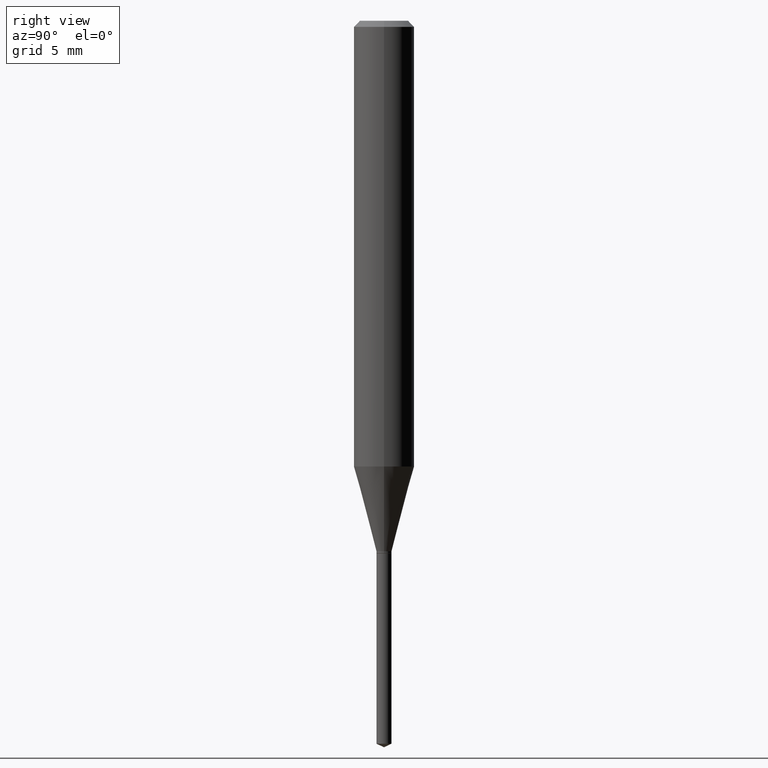
[diagram: clean part render]
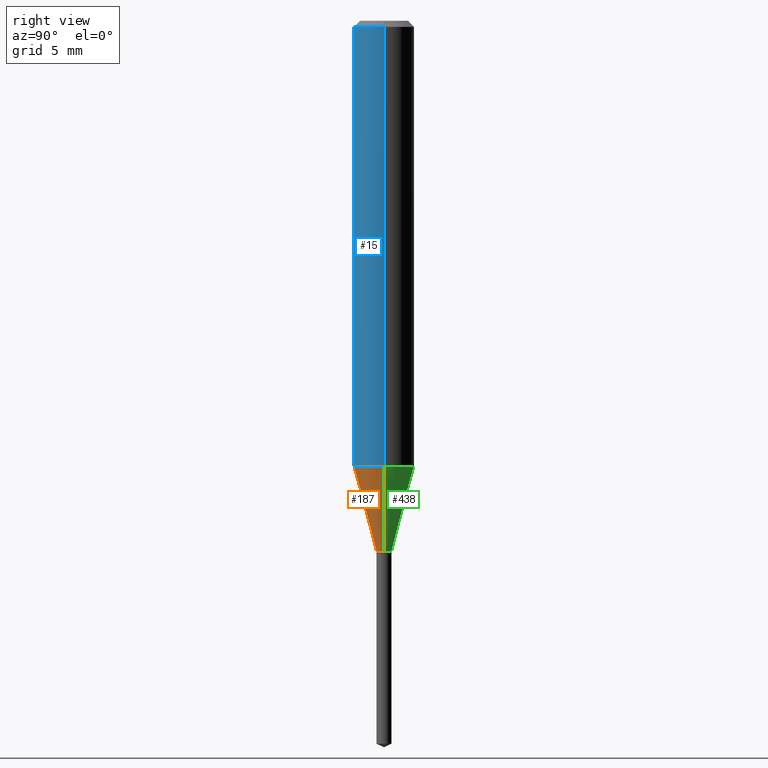
[diagram: same view with three faces highlighted in distinct colors, each labeled with its STEP entity id]
A machine part, right view with three faces highlighted in distinct colors.
Their STEP definitions:

[orange] entity #187 — the highlighted conical surface has half-angle 15 deg.
#43 = FACE_OUTER_BOUND ( 'NONE', #242, .T. ) ;
#47 = CARTESIAN_POINT ( 'NONE',  ( 0.01559999999999999928, -3.933153728206803735E-15, -1.095300000000000162 ) ) ;
#54 = VERTEX_POINT ( 'NONE', #108 ) ;
#61 = EDGE_CURVE ( 'NONE', #106, #54, #131, .T. ) ;
#72 = EDGE_CURVE ( 'NONE', #444, #106, #449, .T. ) ;
#79 = DIRECTION ( 'NONE',  ( 1.000000000000000000, -6.982962677686264344E-15, 0.000000000000000000 ) ) ;
#106 = VERTEX_POINT ( 'NONE', #274 ) ;
#108 = CARTESIAN_POINT ( 'NONE',  ( 0.06250000000000011102, -3.649529586103976953E-15, -0.9202668171250198981 ) ) ;
#112 = CARTESIAN_POINT ( 'NONE',  ( -0.01559999999999999928, -3.713374843656321925E-15, -1.095300000000000162 ) ) ;
#119 = DIRECTION ( 'NONE',  ( -2.445468806185136597E-29, 3.491481338843145583E-15, 1.000000000000000000 ) ) ;
#131 = CIRCLE ( 'NONE', #406, 0.06250000000000012490 ) ;
#140 = VERTEX_POINT ( 'NONE', #47 ) ;
#144 = ORIENTED_EDGE ( 'NONE', *, *, #190, .T. ) ;
#147 = ORIENTED_EDGE ( 'NONE', *, *, #72, .F. ) ;
#162 = DIRECTION ( 'NONE',  ( 0.2588190451025213501, 1.565188264969621968E-15, 0.9659258262890682012 ) ) ;
#169 = AXIS2_PLACEMENT_3D ( 'NONE', #214, #474, #184 ) ;
#183 = VECTOR ( 'NONE', #162, 39.37007874015747433 ) ;
#184 = DIRECTION ( 'NONE',  ( 1.000000000000000000, -6.982962677686252511E-15, 0.000000000000000000 ) ) ;
#187 = ADVANCED_FACE ( 'NONE', ( #43 ), #333, .T. ) ;
#190 = EDGE_CURVE ( 'NONE', #140, #54, #237, .T. ) ;
#198 = CARTESIAN_POINT ( 'NONE',  ( 0.01559999999999999928, -3.933153728206803735E-15, -1.095300000000000162 ) ) ;
#214 = CARTESIAN_POINT ( 'NONE',  ( 2.678521983414580949E-29, -3.824219510434897968E-15, -1.095300000000000162 ) ) ;
#233 = DIRECTION ( 'NONE',  ( 1.000000000000000000, -6.982962677686252511E-15, 0.000000000000000000 ) ) ;
#237 = LINE ( 'NONE', #198, #183 ) ;
#242 = EDGE_LOOP ( 'NONE', ( #147, #457, #144, #470 ) ) ;
#255 = AXIS2_PLACEMENT_3D ( 'NONE', #348, #119, #233 ) ;
#265 = DIRECTION ( 'NONE',  ( -2.445468806185136597E-29, 3.491481338843145583E-15, 1.000000000000000000 ) ) ;
#270 = VECTOR ( 'NONE', #419, 39.37007874015747433 ) ;
#274 = CARTESIAN_POINT ( 'NONE',  ( -0.06250000000000011102, -2.769005208898521090E-15, -0.9202668171250198981 ) ) ;
#317 = CIRCLE ( 'NONE', #169, 0.01559999999999999928 ) ;
#333 = CONICAL_SURFACE ( 'NONE', #255, 0.01559999999999999928, 0.2617993877991500740 ) ;
#348 = CARTESIAN_POINT ( 'NONE',  ( 2.678521983414580949E-29, -3.824219510434897968E-15, -1.095300000000000162 ) ) ;
#406 = AXIS2_PLACEMENT_3D ( 'NONE', #454, #265, #79 ) ;
#419 = DIRECTION ( 'NONE',  ( -0.2588190451025213501, 5.211531920934551042E-15, 0.9659258262890682012 ) ) ;
#431 = EDGE_CURVE ( 'NONE', #444, #140, #317, .T. ) ;
#439 = CARTESIAN_POINT ( 'NONE',  ( -0.01559999999999999928, -3.720706954467892240E-15, -1.095300000000000162 ) ) ;
#444 = VERTEX_POINT ( 'NONE', #439 ) ;
#449 = LINE ( 'NONE', #112, #270 ) ;
#454 = CARTESIAN_POINT ( 'NONE',  ( 2.250483794646517689E-29, -3.213094418748584889E-15, -0.9202668171250198981 ) ) ;
#457 = ORIENTED_EDGE ( 'NONE', *, *, #431, .T. ) ;
#470 = ORIENTED_EDGE ( 'NONE', *, *, #61, .F. ) ;
#474 = DIRECTION ( 'NONE',  ( -2.445468806185136597E-29, 3.491481338843145583E-15, 1.000000000000000000 ) ) ;

[blue] entity #15 — the highlighted cylindrical surface (edge-blend (fillet) strip) has radius 1.5875 mm, axis along (-0, 0, 1).
#1 = CYLINDRICAL_SURFACE ( 'NONE', #293, 0.06250000000000005551 ) ;
#13 = DIRECTION ( 'NONE',  ( -2.445468806185136877E-29, 3.491481338843145188E-15, 1.000000000000000000 ) ) ;
#15 = ADVANCED_FACE ( 'NONE', ( #154 ), #1, .T. ) ;
#23 = CARTESIAN_POINT ( 'NONE',  ( -0.06250000000000000000, -1.184279757891998426E-15, -0.01250000000000008223 ) ) ;
#54 = VERTEX_POINT ( 'NONE', #108 ) ;
#55 = EDGE_CURVE ( 'NONE', #54, #437, #489, .T. ) ;
#60 = ORIENTED_EDGE ( 'NONE', *, *, #61, .T. ) ;
#61 = EDGE_CURVE ( 'NONE', #106, #54, #131, .T. ) ;
#73 = DIRECTION ( 'NONE',  ( -2.445468806185136877E-29, 3.491481338843145188E-15, 1.000000000000000000 ) ) ;
#79 = DIRECTION ( 'NONE',  ( 1.000000000000000000, -6.982962677686264344E-15, 0.000000000000000000 ) ) ;
#106 = VERTEX_POINT ( 'NONE', #274 ) ;
#108 = CARTESIAN_POINT ( 'NONE',  ( 0.06250000000000011102, -3.649529586103976953E-15, -0.9202668171250198981 ) ) ;
#113 = EDGE_CURVE ( 'NONE', #106, #322, #238, .T. ) ;
#123 = VECTOR ( 'NONE', #73, 39.37007874015748143 ) ;
#131 = CIRCLE ( 'NONE', #406, 0.06250000000000012490 ) ;
#134 = EDGE_LOOP ( 'NONE', ( #215, #60, #193, #220 ) ) ;
#154 = FACE_OUTER_BOUND ( 'NONE', #134, .T. ) ;
#156 = CARTESIAN_POINT ( 'NONE',  ( 0.000000000000000000, 0.000000000000000000, 0.000000000000000000 ) ) ;
#193 = ORIENTED_EDGE ( 'NONE', *, *, #55, .T. ) ;
#215 = ORIENTED_EDGE ( 'NONE', *, *, #113, .F. ) ;
#218 = DIRECTION ( 'NONE',  ( -2.445468806185136597E-29, 3.491481338843145583E-15, 1.000000000000000000 ) ) ;
#220 = ORIENTED_EDGE ( 'NONE', *, *, #394, .F. ) ;
#229 = CARTESIAN_POINT ( 'NONE',  ( 0.06250000000000005551, -4.364351673553921131E-16, 3.047610484872463023E-30 ) ) ;
#238 = LINE ( 'NONE', #349, #421 ) ;
#265 = DIRECTION ( 'NONE',  ( -2.445468806185136597E-29, 3.491481338843145583E-15, 1.000000000000000000 ) ) ;
#274 = CARTESIAN_POINT ( 'NONE',  ( -0.06250000000000011102, -2.769005208898521090E-15, -0.9202668171250198981 ) ) ;
#282 = CARTESIAN_POINT ( 'NONE',  ( 0.06250000000000000000, -4.800786840909312308E-16, -0.01250000000000008223 ) ) ;
#293 = AXIS2_PLACEMENT_3D ( 'NONE', #156, #376, #451 ) ;
#322 = VERTEX_POINT ( 'NONE', #23 ) ;
#334 = CIRCLE ( 'NONE', #345, 0.06250000000000000000 ) ;
#345 = AXIS2_PLACEMENT_3D ( 'NONE', #468, #218, #397 ) ;
#349 = CARTESIAN_POINT ( 'NONE',  ( -0.06250000000000005551, 4.440892098500630106E-16, -3.074334431409318916E-30 ) ) ;
#376 = DIRECTION ( 'NONE',  ( -2.445468806185136597E-29, 3.491481338843145583E-15, 1.000000000000000000 ) ) ;
#394 = EDGE_CURVE ( 'NONE', #322, #437, #334, .T. ) ;
#397 = DIRECTION ( 'NONE',  ( 1.000000000000000000, -6.982962677686266711E-15, 0.000000000000000000 ) ) ;
#406 = AXIS2_PLACEMENT_3D ( 'NONE', #454, #265, #79 ) ;
#421 = VECTOR ( 'NONE', #13, 39.37007874015748143 ) ;
#437 = VERTEX_POINT ( 'NONE', #282 ) ;
#451 = DIRECTION ( 'NONE',  ( 1.000000000000000000, -6.982962677686267499E-15, 4.876176775795936353E-29 ) ) ;
#454 = CARTESIAN_POINT ( 'NONE',  ( 2.250483794646517689E-29, -3.213094418748584889E-15, -0.9202668171250198981 ) ) ;
#468 = CARTESIAN_POINT ( 'NONE',  ( 3.056836007731440977E-31, -4.364351673553961068E-17, -0.01250000000000008223 ) ) ;
#489 = LINE ( 'NONE', #229, #123 ) ;

[green] entity #438 — the highlighted conical surface has half-angle 15 deg.
#6 = DIRECTION ( 'NONE',  ( 1.000000000000000000, -6.982962677686252511E-15, 0.000000000000000000 ) ) ;
#45 = DIRECTION ( 'NONE',  ( -2.445468806185136597E-29, 3.491481338843145583E-15, 1.000000000000000000 ) ) ;
#47 = CARTESIAN_POINT ( 'NONE',  ( 0.01559999999999999928, -3.933153728206803735E-15, -1.095300000000000162 ) ) ;
#54 = VERTEX_POINT ( 'NONE', #108 ) ;
#62 = CARTESIAN_POINT ( 'NONE',  ( 2.678521983414580949E-29, -3.824219510434897968E-15, -1.095300000000000162 ) ) ;
#72 = EDGE_CURVE ( 'NONE', #444, #106, #449, .T. ) ;
#93 = ORIENTED_EDGE ( 'NONE', *, *, #72, .T. ) ;
#100 = FACE_OUTER_BOUND ( 'NONE', #174, .T. ) ;
#101 = AXIS2_PLACEMENT_3D ( 'NONE', #62, #476, #142 ) ;
#106 = VERTEX_POINT ( 'NONE', #274 ) ;
#108 = CARTESIAN_POINT ( 'NONE',  ( 0.06250000000000011102, -3.649529586103976953E-15, -0.9202668171250198981 ) ) ;
#112 = CARTESIAN_POINT ( 'NONE',  ( -0.01559999999999999928, -3.713374843656321925E-15, -1.095300000000000162 ) ) ;
#140 = VERTEX_POINT ( 'NONE', #47 ) ;
#141 = AXIS2_PLACEMENT_3D ( 'NONE', #456, #45, #6 ) ;
#142 = DIRECTION ( 'NONE',  ( 1.000000000000000000, -6.982962677686252511E-15, 0.000000000000000000 ) ) ;
#162 = DIRECTION ( 'NONE',  ( 0.2588190451025213501, 1.565188264969621968E-15, 0.9659258262890682012 ) ) ;
#174 = EDGE_LOOP ( 'NONE', ( #244, #93, #481, #230 ) ) ;
#183 = VECTOR ( 'NONE', #162, 39.37007874015747433 ) ;
#190 = EDGE_CURVE ( 'NONE', #140, #54, #237, .T. ) ;
#198 = CARTESIAN_POINT ( 'NONE',  ( 0.01559999999999999928, -3.933153728206803735E-15, -1.095300000000000162 ) ) ;
#200 = AXIS2_PLACEMENT_3D ( 'NONE', #210, #401, #280 ) ;
#210 = CARTESIAN_POINT ( 'NONE',  ( 2.250483794646517689E-29, -3.213094418748584889E-15, -0.9202668171250198981 ) ) ;
#222 = CIRCLE ( 'NONE', #200, 0.06250000000000012490 ) ;
#230 = ORIENTED_EDGE ( 'NONE', *, *, #190, .F. ) ;
#232 = EDGE_CURVE ( 'NONE', #140, #444, #350, .T. ) ;
#237 = LINE ( 'NONE', #198, #183 ) ;
#244 = ORIENTED_EDGE ( 'NONE', *, *, #232, .T. ) ;
#270 = VECTOR ( 'NONE', #419, 39.37007874015747433 ) ;
#274 = CARTESIAN_POINT ( 'NONE',  ( -0.06250000000000011102, -2.769005208898521090E-15, -0.9202668171250198981 ) ) ;
#280 = DIRECTION ( 'NONE',  ( 1.000000000000000000, -6.982962677686264344E-15, 0.000000000000000000 ) ) ;
#310 = CONICAL_SURFACE ( 'NONE', #101, 0.01559999999999999928, 0.2617993877991500740 ) ;
#330 = EDGE_CURVE ( 'NONE', #54, #106, #222, .T. ) ;
#350 = CIRCLE ( 'NONE', #141, 0.01559999999999999928 ) ;
#401 = DIRECTION ( 'NONE',  ( -2.445468806185136597E-29, 3.491481338843145583E-15, 1.000000000000000000 ) ) ;
#419 = DIRECTION ( 'NONE',  ( -0.2588190451025213501, 5.211531920934551042E-15, 0.9659258262890682012 ) ) ;
#438 = ADVANCED_FACE ( 'NONE', ( #100 ), #310, .T. ) ;
#439 = CARTESIAN_POINT ( 'NONE',  ( -0.01559999999999999928, -3.720706954467892240E-15, -1.095300000000000162 ) ) ;
#444 = VERTEX_POINT ( 'NONE', #439 ) ;
#449 = LINE ( 'NONE', #112, #270 ) ;
#456 = CARTESIAN_POINT ( 'NONE',  ( 2.678521983414580949E-29, -3.824219510434897968E-15, -1.095300000000000162 ) ) ;
#476 = DIRECTION ( 'NONE',  ( -2.445468806185136597E-29, 3.491481338843145583E-15, 1.000000000000000000 ) ) ;
#481 = ORIENTED_EDGE ( 'NONE', *, *, #330, .F. ) ;